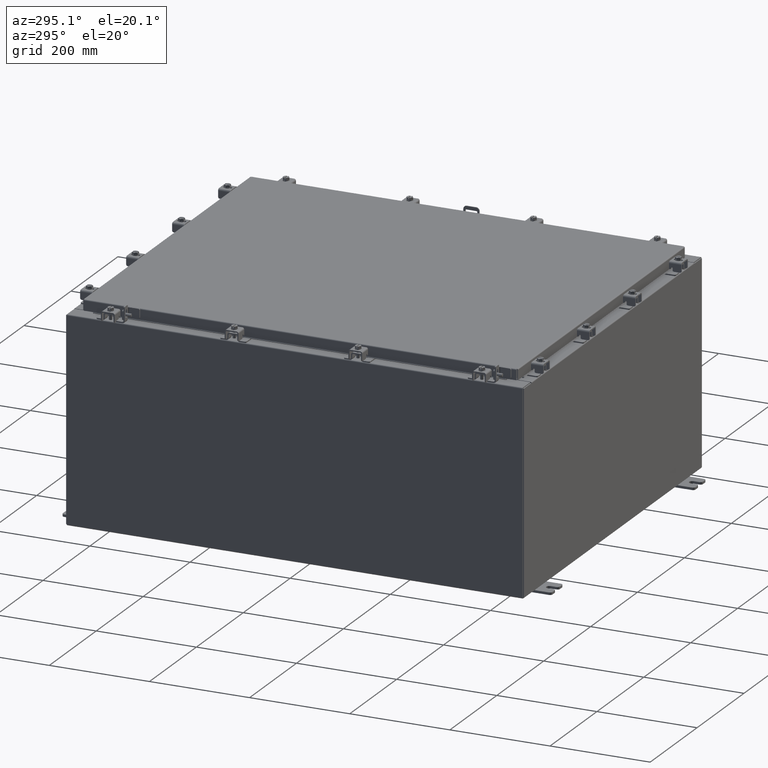
[diagram: clean part render]
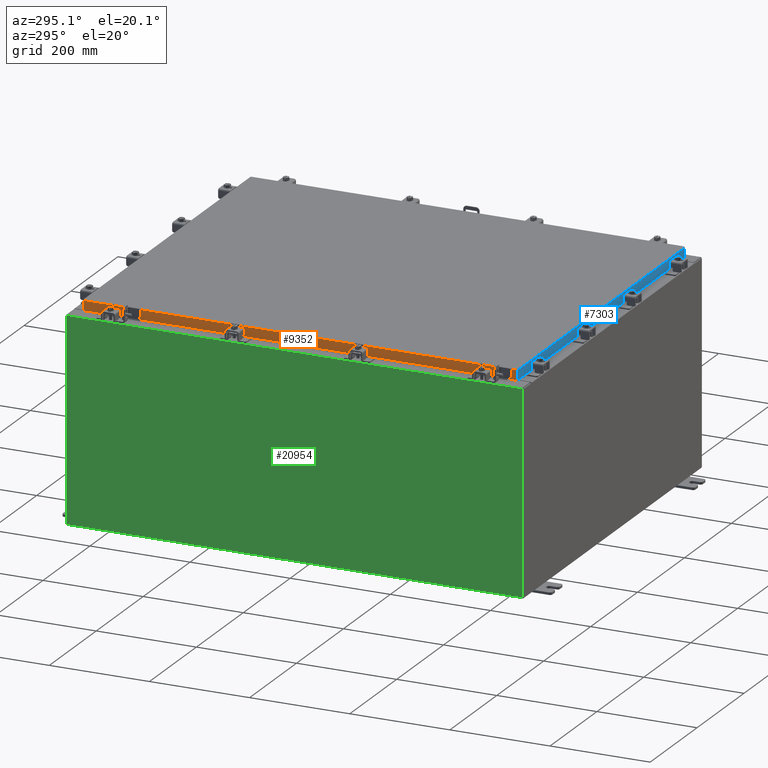
[diagram: same view with three faces highlighted in distinct colors, each labeled with its STEP entity id]
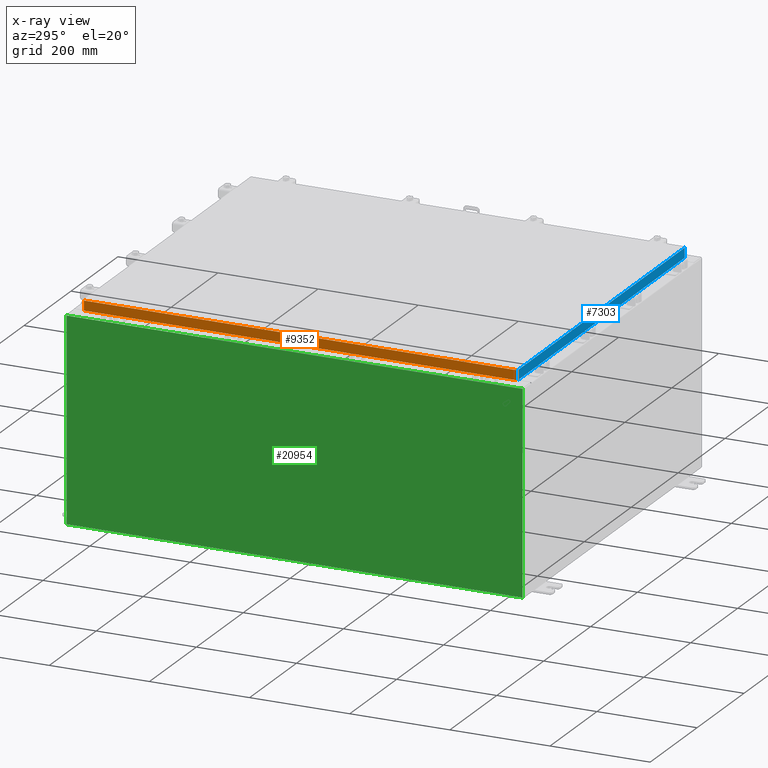
[diagram: x-ray of the same camera — body ghosted, the three highlighted faces saturated]
A machine part, auxiliary view with three faces highlighted in distinct colors.
The next image is the same camera in x-ray (body ghosted, the three faces saturated) — at least one of them is partly hidden behind the body in this view.
Their STEP definitions:

[orange] entity #9352 — the highlighted planar face has unit normal (1, 0, -0).
#18 = VERTEX_POINT ( 'NONE', #5277 ) ;
#161 = EDGE_LOOP ( 'NONE', ( #1053, #11132, #21540, #17536, #19574, #7379 ) ) ;
#550 = EDGE_CURVE ( 'NONE', #20217, #1420, #14312, .T. ) ;
#803 = DIRECTION ( 'NONE',  ( -2.818880942772360500E-015, 6.982962677686269100E-015, -1.000000000000000000 ) ) ;
#927 = DIRECTION ( 'NONE',  ( 3.491332948470575600E-031, -1.000000000000000000, -9.516562228463834600E-046 ) ) ;
#989 = VECTOR ( 'NONE', #927, 39.37007874015748100 ) ;
#1053 = ORIENTED_EDGE ( 'NONE', *, *, #7031, .F. ) ;
#1420 = VERTEX_POINT ( 'NONE', #24392 ) ;
#1564 = LINE ( 'NONE', #14115, #989 ) ;
#2333 = PLANE ( 'NONE',  #6632 ) ;
#2393 = VERTEX_POINT ( 'NONE', #8755 ) ;
#3164 = DIRECTION ( 'NONE',  ( -2.818880942772360500E-015, 6.982962677686269100E-015, -1.000000000000000000 ) ) ;
#5277 = CARTESIAN_POINT ( 'NONE',  ( -14.07799999999999900, -17.00515786437626900, -0.08770000000000007000 ) ) ;
#5669 = DIRECTION ( 'NONE',  ( 4.379057701015054300E-047, 1.000000000000000000, 1.238552822680358400E-016 ) ) ;
#5682 = CARTESIAN_POINT ( 'NONE',  ( -14.07799999999999400, 16.25515786437627200, -0.8500000000000025300 ) ) ;
#6152 = DIRECTION ( 'NONE',  ( -2.818880942772360100E-015, 0.0000000000000000000, -1.000000000000000000 ) ) ;
#6632 = AXIS2_PLACEMENT_3D ( 'NONE', #15617, #17492, #6152 ) ;
#7031 = EDGE_CURVE ( 'NONE', #17778, #18, #1564, .T. ) ;
#7379 = ORIENTED_EDGE ( 'NONE', *, *, #14066, .F. ) ;
#7661 = VECTOR ( 'NONE', #3164, 39.37007874015748100 ) ;
#8224 = CARTESIAN_POINT ( 'NONE',  ( -14.07799999999999400, -16.25515786437626900, -0.8500000000000025300 ) ) ;
#8256 = LINE ( 'NONE', #14518, #7661 ) ;
#8592 = VERTEX_POINT ( 'NONE', #5682 ) ;
#8755 = CARTESIAN_POINT ( 'NONE',  ( -14.07800000000000300, 17.00515786437627200, -0.8499999999999953100 ) ) ;
#9352 = ADVANCED_FACE ( 'NONE', ( #15238 ), #2333, .F. ) ;
#9527 = LINE ( 'NONE', #22631, #13971 ) ;
#10540 = CARTESIAN_POINT ( 'NONE',  ( -14.07800000000000300, -17.09400000000000100, -0.8499999999999996400 ) ) ;
#11003 = EDGE_CURVE ( 'NONE', #8592, #2393, #9527, .T. ) ;
#11132 = ORIENTED_EDGE ( 'NONE', *, *, #21046, .T. ) ;
#13727 = CARTESIAN_POINT ( 'NONE',  ( -14.07800000000000300, -17.00515786437626900, -0.8499999999999996400 ) ) ;
#13798 = VECTOR ( 'NONE', #803, 39.37007874015748100 ) ;
#13971 = VECTOR ( 'NONE', #5669, 39.37007874015748100 ) ;
#14045 = CARTESIAN_POINT ( 'NONE',  ( -14.07799999999999900, -17.00515786437627200, -0.07469999999999978000 ) ) ;
#14066 = EDGE_CURVE ( 'NONE', #18, #20217, #18241, .T. ) ;
#14115 = CARTESIAN_POINT ( 'NONE',  ( -14.07799999999999900, -17.09400000000000100, -0.08770000000000007000 ) ) ;
#14312 = LINE ( 'NONE', #10540, #23762 ) ;
#14518 = CARTESIAN_POINT ( 'NONE',  ( -14.07799999999999900, 17.00515786437626500, 1.586914022634634500E-013 ) ) ;
#15238 = FACE_OUTER_BOUND ( 'NONE', #161, .T. ) ;
#15617 = CARTESIAN_POINT ( 'NONE',  ( -14.07799999999999900, -4.915098524856876500E-030, 3.994501956836086200E-014 ) ) ;
#15682 = LINE ( 'NONE', #8224, #20106 ) ;
#17492 = DIRECTION ( 'NONE',  ( 1.000000000000000000, 3.491332948470575600E-031, -2.818880942772360100E-015 ) ) ;
#17536 = ORIENTED_EDGE ( 'NONE', *, *, #20923, .F. ) ;
#17778 = VERTEX_POINT ( 'NONE', #22205 ) ;
#18241 = LINE ( 'NONE', #14045, #13798 ) ;
#19574 = ORIENTED_EDGE ( 'NONE', *, *, #550, .F. ) ;
#19935 = DIRECTION ( 'NONE',  ( 4.379057701015054300E-047, 1.000000000000000000, 1.238552822680358400E-016 ) ) ;
#20106 = VECTOR ( 'NONE', #21459, 39.37007874015748100 ) ;
#20217 = VERTEX_POINT ( 'NONE', #13727 ) ;
#20923 = EDGE_CURVE ( 'NONE', #1420, #8592, #15682, .T. ) ;
#21046 = EDGE_CURVE ( 'NONE', #17778, #2393, #8256, .T. ) ;
#21459 = DIRECTION ( 'NONE',  ( -0.0000000000000000000, 1.000000000000000000, -0.0000000000000000000 ) ) ;
#21540 = ORIENTED_EDGE ( 'NONE', *, *, #11003, .F. ) ;
#22205 = CARTESIAN_POINT ( 'NONE',  ( -14.07799999999999900, 17.00515786437626500, -0.08770000000000007000 ) ) ;
#22631 = CARTESIAN_POINT ( 'NONE',  ( -14.07800000000000300, -17.09400000000000100, -0.8499999999999996400 ) ) ;
#23762 = VECTOR ( 'NONE', #19935, 39.37007874015748100 ) ;
#24392 = CARTESIAN_POINT ( 'NONE',  ( -14.07799999999999400, -16.25515786437626500, -0.8500000000000025300 ) ) ;

[blue] entity #7303 — the highlighted planar face has unit normal (-0, 1, -0).
#1444 = VECTOR ( 'NONE', #1590, 39.37007874015748100 ) ;
#1590 = DIRECTION ( 'NONE',  ( -1.000000000000000000, 4.379057701015054300E-047, 1.212817869044015600E-016 ) ) ;
#1837 = CARTESIAN_POINT ( 'NONE',  ( 13.23915786437626900, -17.09399999999999800, -0.8500000000000006400 ) ) ;
#2183 = ORIENTED_EDGE ( 'NONE', *, *, #11619, .F. ) ;
#2919 = LINE ( 'NONE', #10698, #22707 ) ;
#3077 = EDGE_CURVE ( 'NONE', #16540, #14622, #5586, .T. ) ;
#3422 = PLANE ( 'NONE',  #11225 ) ;
#3494 = DIRECTION ( 'NONE',  ( -3.418789178101958800E-031, 1.000000000000000000, -2.818880942772360100E-015 ) ) ;
#3910 = VECTOR ( 'NONE', #9466, 39.37007874015748100 ) ;
#4999 = CARTESIAN_POINT ( 'NONE',  ( -13.98915786437626900, -17.09400000000000100, -0.08770000000000007000 ) ) ;
#5055 = ORIENTED_EDGE ( 'NONE', *, *, #7401, .F. ) ;
#5130 = ORIENTED_EDGE ( 'NONE', *, *, #22207, .T. ) ;
#5310 = CARTESIAN_POINT ( 'NONE',  ( 14.07799999999999900, -17.09400000000000500, -0.8499999999999996400 ) ) ;
#5586 = LINE ( 'NONE', #16434, #16232 ) ;
#5745 = VECTOR ( 'NONE', #6821, 39.37007874015748100 ) ;
#5803 = ORIENTED_EDGE ( 'NONE', *, *, #3077, .F. ) ;
#6480 = LINE ( 'NONE', #5310, #1444 ) ;
#6821 = DIRECTION ( 'NONE',  ( -1.000000000000000000, 4.379057701015054300E-047, 1.212817869044015600E-016 ) ) ;
#7303 = ADVANCED_FACE ( 'NONE', ( #11953 ), #3422, .F. ) ;
#7401 = EDGE_CURVE ( 'NONE', #10970, #16396, #8961, .T. ) ;
#8296 = ORIENTED_EDGE ( 'NONE', *, *, #21165, .F. ) ;
#8567 = VECTOR ( 'NONE', #14840, 39.37007874015748100 ) ;
#8961 = LINE ( 'NONE', #1837, #3910 ) ;
#9466 = DIRECTION ( 'NONE',  ( -1.000000000000000000, 0.0000000000000000000, 0.0000000000000000000 ) ) ;
#10698 = CARTESIAN_POINT ( 'NONE',  ( -13.98915786437626900, -17.09400000000000100, 4.844676449176230700E-014 ) ) ;
#10970 = VERTEX_POINT ( 'NONE', #17658 ) ;
#11061 = CARTESIAN_POINT ( 'NONE',  ( 14.07799999999999800, -17.09400000000000100, -0.08770000000000007000 ) ) ;
#11070 = CARTESIAN_POINT ( 'NONE',  ( 5.844078221047488800E-030, -17.09400000000000100, 4.844676449176230700E-014 ) ) ;
#11225 = AXIS2_PLACEMENT_3D ( 'NONE', #11070, #3494, #16770 ) ;
#11619 = EDGE_CURVE ( 'NONE', #14134, #16540, #13599, .T. ) ;
#11953 = FACE_OUTER_BOUND ( 'NONE', #21358, .T. ) ;
#12784 = VERTEX_POINT ( 'NONE', #14242 ) ;
#13421 = ORIENTED_EDGE ( 'NONE', *, *, #17683, .F. ) ;
#13599 = LINE ( 'NONE', #11061, #8567 ) ;
#14134 = VERTEX_POINT ( 'NONE', #4999 ) ;
#14242 = CARTESIAN_POINT ( 'NONE',  ( -13.98915786437626900, -17.09400000000000500, -0.8499999999999963100 ) ) ;
#14622 = VERTEX_POINT ( 'NONE', #18063 ) ;
#14840 = DIRECTION ( 'NONE',  ( 1.000000000000000000, 3.418789178101959700E-031, -9.318824769679573900E-046 ) ) ;
#15838 = LINE ( 'NONE', #20061, #5745 ) ;
#16232 = VECTOR ( 'NONE', #22110, 39.37007874015748100 ) ;
#16396 = VERTEX_POINT ( 'NONE', #18058 ) ;
#16434 = CARTESIAN_POINT ( 'NONE',  ( 13.98915786437626700, -17.09400000000000100, -0.07469999999999978000 ) ) ;
#16540 = VERTEX_POINT ( 'NONE', #24227 ) ;
#16770 = DIRECTION ( 'NONE',  ( 0.0000000000000000000, 2.818880942772360100E-015, 1.000000000000000000 ) ) ;
#17658 = CARTESIAN_POINT ( 'NONE',  ( 13.23915786437626900, -17.09399999999999800, -0.8500000000000006400 ) ) ;
#17683 = EDGE_CURVE ( 'NONE', #14622, #10970, #15838, .T. ) ;
#18058 = CARTESIAN_POINT ( 'NONE',  ( -13.23915786437626900, -17.09399999999999800, -0.8500000000000006400 ) ) ;
#18063 = CARTESIAN_POINT ( 'NONE',  ( 13.98915786437626700, -17.09400000000000500, -0.8499999999999996400 ) ) ;
#20061 = CARTESIAN_POINT ( 'NONE',  ( 14.07799999999999900, -17.09400000000000500, -0.8499999999999996400 ) ) ;
#20191 = DIRECTION ( 'NONE',  ( 0.0000000000000000000, -2.818880942772360100E-015, -1.000000000000000000 ) ) ;
#21165 = EDGE_CURVE ( 'NONE', #16396, #12784, #6480, .T. ) ;
#21358 = EDGE_LOOP ( 'NONE', ( #2183, #5130, #8296, #5055, #13421, #5803 ) ) ;
#22110 = DIRECTION ( 'NONE',  ( -0.0000000000000000000, -2.818880942772360100E-015, -1.000000000000000000 ) ) ;
#22207 = EDGE_CURVE ( 'NONE', #14134, #12784, #2919, .T. ) ;
#22707 = VECTOR ( 'NONE', #20191, 39.37007874015748100 ) ;
#24227 = CARTESIAN_POINT ( 'NONE',  ( 13.98915786437626500, -17.09400000000000100, -0.08770000000000007000 ) ) ;

[green] entity #20954 — the highlighted planar face has unit normal (1, 0, 0).
#761 = EDGE_CURVE ( 'NONE', #6541, #1697, #20207, .T. ) ;
#875 = VERTEX_POINT ( 'NONE', #9716 ) ;
#1697 = VERTEX_POINT ( 'NONE', #2315 ) ;
#2315 = CARTESIAN_POINT ( 'NONE',  ( -15.00000000000005700, -17.92530000000000000, 15.83759999999998200 ) ) ;
#4832 = DIRECTION ( 'NONE',  ( 3.430827668758847900E-015, 0.0000000000000000000, -1.000000000000000000 ) ) ;
#5655 = EDGE_CURVE ( 'NONE', #1697, #875, #17043, .T. ) ;
#6281 = VECTOR ( 'NONE', #11305, 39.37007874015748100 ) ;
#6362 = CARTESIAN_POINT ( 'NONE',  ( -15.00000000000000400, 17.92530000000000000, 0.01299999999999984800 ) ) ;
#6541 = VERTEX_POINT ( 'NONE', #12972 ) ;
#7169 = CARTESIAN_POINT ( 'NONE',  ( -15.00000000000000400, 17.92530000000000000, -5.172322868739430800E-014 ) ) ;
#7276 = LINE ( 'NONE', #11927, #22374 ) ;
#8319 = VERTEX_POINT ( 'NONE', #6362 ) ;
#8559 = CARTESIAN_POINT ( 'NONE',  ( -15.00000000000000400, 0.0000000000000000000, -5.172322868739430800E-014 ) ) ;
#9716 = CARTESIAN_POINT ( 'NONE',  ( -15.00000000000005700, 17.92530000000000000, 15.83759999999999500 ) ) ;
#11305 = DIRECTION ( 'NONE',  ( -3.430827668758847900E-015, 0.0000000000000000000, 1.000000000000000000 ) ) ;
#11927 = CARTESIAN_POINT ( 'NONE',  ( -15.00000000000000400, 17.92530000000000000, 0.01299999999999984700 ) ) ;
#12033 = VECTOR ( 'NONE', #23326, 39.37007874015748100 ) ;
#12301 = ORIENTED_EDGE ( 'NONE', *, *, #5655, .T. ) ;
#12972 = CARTESIAN_POINT ( 'NONE',  ( -15.00000000000000400, -17.92530000000000000, 0.01299999999999984700 ) ) ;
#13994 = CARTESIAN_POINT ( 'NONE',  ( -15.00000000000005700, -17.92530000000000000, 15.83759999999998200 ) ) ;
#15082 = FACE_OUTER_BOUND ( 'NONE', #21045, .T. ) ;
#16202 = DIRECTION ( 'NONE',  ( 1.000000000000000000, 0.0000000000000000000, 3.430827668758847900E-015 ) ) ;
#16368 = ORIENTED_EDGE ( 'NONE', *, *, #24351, .F. ) ;
#16702 = DIRECTION ( 'NONE',  ( 3.430827668758847900E-015, 0.0000000000000000000, -1.000000000000000000 ) ) ;
#17043 = LINE ( 'NONE', #13994, #12033 ) ;
#17322 = EDGE_CURVE ( 'NONE', #875, #8319, #17417, .T. ) ;
#17417 = LINE ( 'NONE', #7169, #22430 ) ;
#20207 = LINE ( 'NONE', #22276, #6281 ) ;
#20954 = ADVANCED_FACE ( 'NONE', ( #15082 ), #23689, .F. ) ;
#21045 = EDGE_LOOP ( 'NONE', ( #12301, #21718, #16368, #22571 ) ) ;
#21718 = ORIENTED_EDGE ( 'NONE', *, *, #17322, .T. ) ;
#22276 = CARTESIAN_POINT ( 'NONE',  ( -15.00000000000000400, -17.92530000000000000, -5.172322868739430800E-014 ) ) ;
#22374 = VECTOR ( 'NONE', #23236, 39.37007874015748100 ) ;
#22430 = VECTOR ( 'NONE', #16702, 39.37007874015748100 ) ;
#22571 = ORIENTED_EDGE ( 'NONE', *, *, #761, .T. ) ;
#22801 = AXIS2_PLACEMENT_3D ( 'NONE', #8559, #16202, #4832 ) ;
#23236 = DIRECTION ( 'NONE',  ( -0.0000000000000000000, 1.000000000000000000, -0.0000000000000000000 ) ) ;
#23326 = DIRECTION ( 'NONE',  ( 0.0000000000000000000, 1.000000000000000000, 0.0000000000000000000 ) ) ;
#23689 = PLANE ( 'NONE',  #22801 ) ;
#24351 = EDGE_CURVE ( 'NONE', #6541, #8319, #7276, .T. ) ;